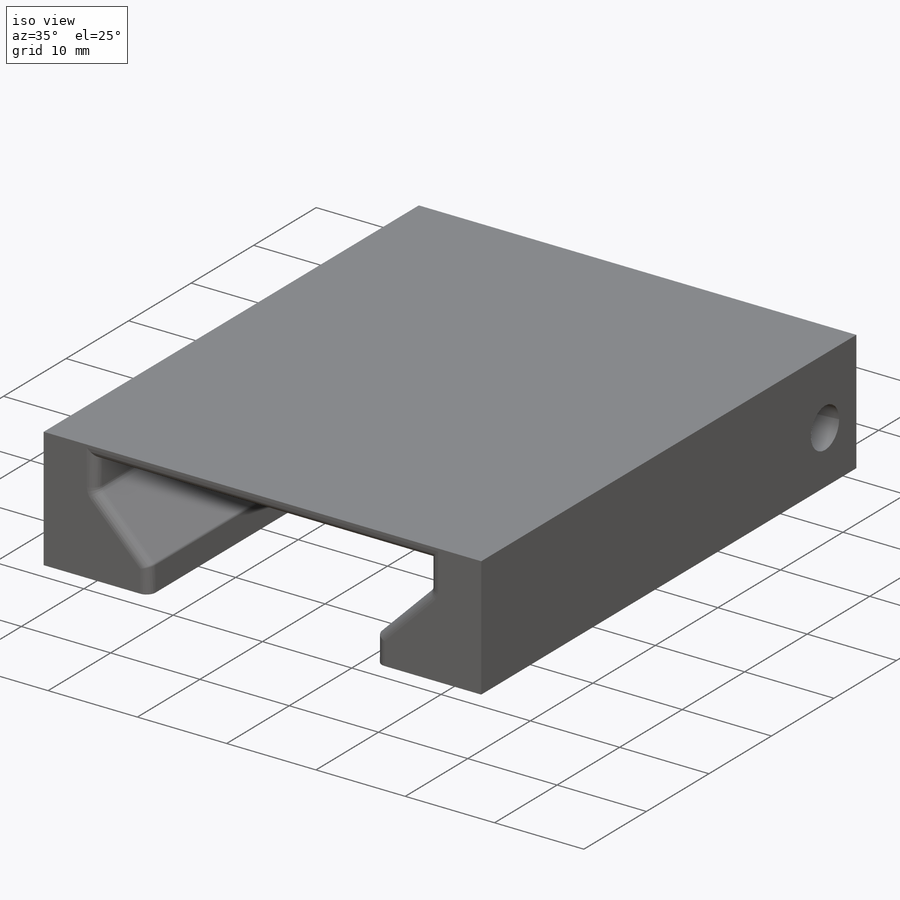
[diagram: iso view]
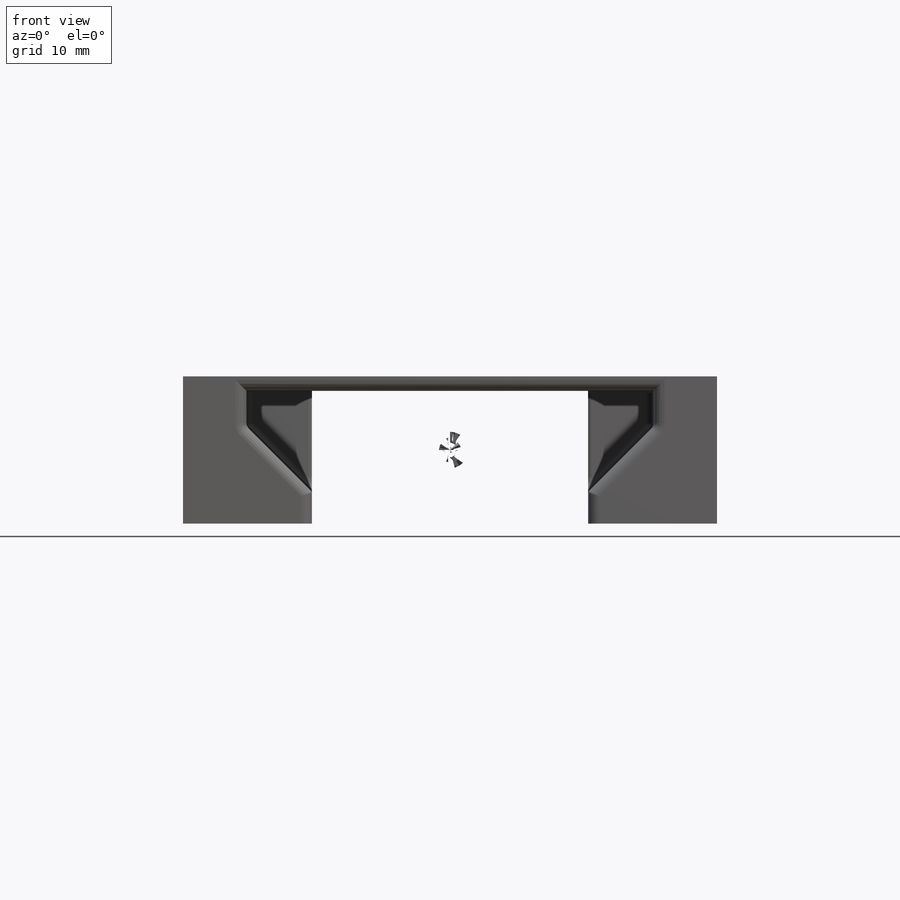
[diagram: front view]
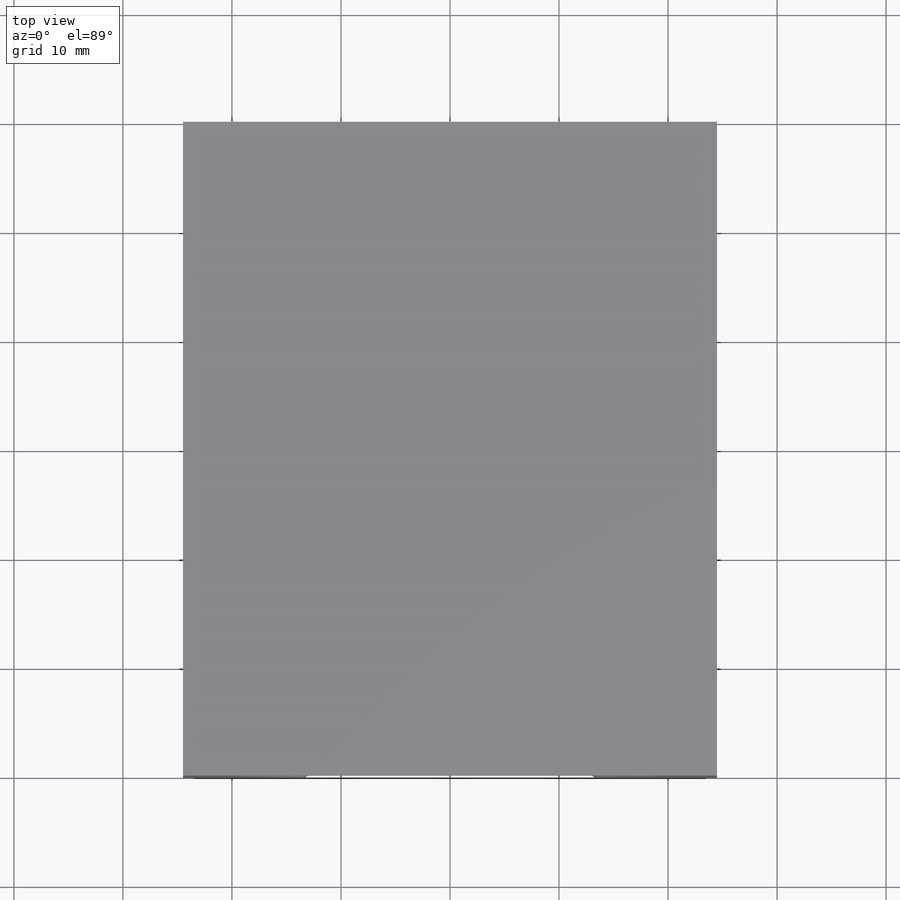
[diagram: top view]
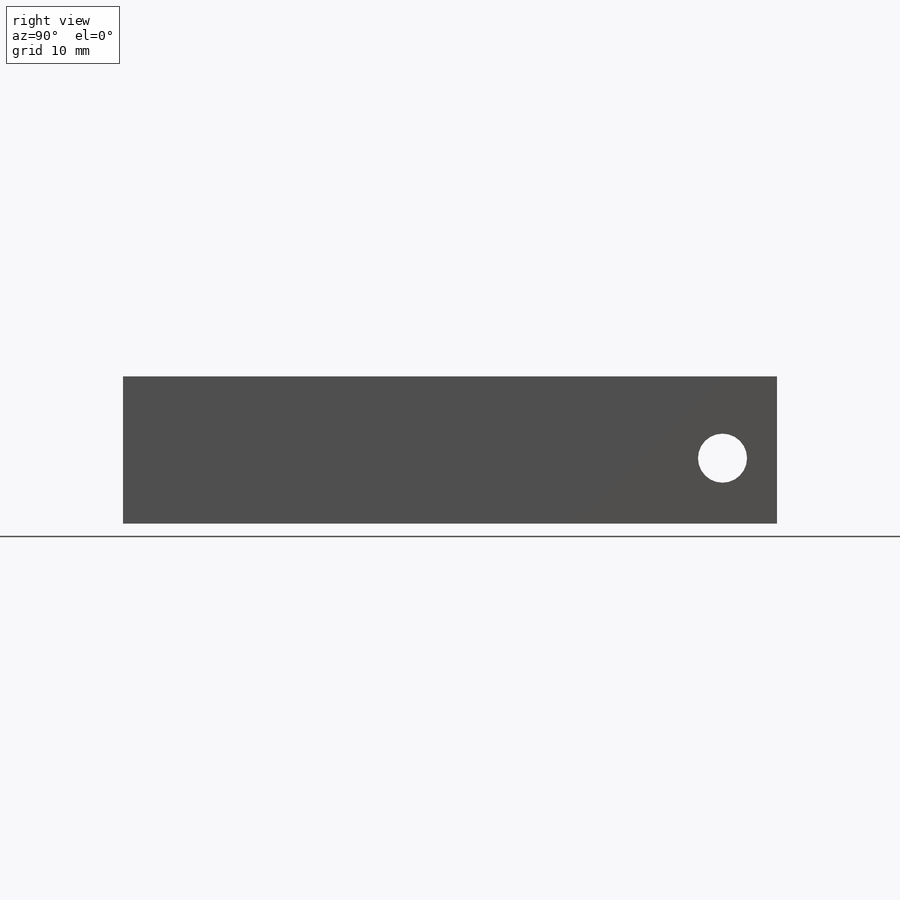
[diagram: right view]
SOLIDWORKS PART (.sldprt)
format: sldprt  version: not decoded by parser v0  size: 454,656 bytes
history: native  units: mm
features: sketch x11, cut_extrude x4, material x1, extrude x1, move_body x1, boolean_combine x1, hole x1, fillet x1 + 1 further entry (+18 scaffold rows collapsed; 5 parser-record rows omitted)
feature tree (45):
  scaffold x18  (default folders/planes/origin — collapsed)
  material  "ABS"
  sketch  "Sketch1"  dims[c1.D1=~9.515924mm c1.D2=~10.925691mm c2.D1=13.5mm c2.D2=49.0mm]
  extrude  "Main Body"  Depth=60mm
  sketch  "Sketch1-dovetail_male"  dims[c1.D1=10.0mm c1.D2=~6.409122mm c2.D2=45.0deg c2.D3=3.0mm c2.D4=~14.511515mm c2.D1=12.0mm c3.D2=3.0mm c3.D3=~5.973698mm c4.D3=45.0deg c4.D4=25.0mm]
  sketch  "Sketch9-dovetail_male"  dims[c1.D1=12.0mm c1.D2=6.0mm c2.D1=~16.178239mm]
  sketch  "Sketch10-dovetail_male"  dims[D1=~2.410913mm]
  sketch  "Sketch11-dovetail_male"  dims[c1.D1=~30.096908mm c1.D2=~14.271345mm c2.D1=6.0mm c2.D2=6.0mm c2.D3=6.0mm]
  "dovetail_male"
  parser-record x5  (decoder bookkeeping rows leaked as tree rows — omitted from the tree; the rows remain in map.json)
  move_body  "Body-Move/Copy2"
  boolean_combine  "Combine1"
  sketch  "Sketch6"  dims[D1=60.0mm D2=~25.279678mm]
  cut_extrude  "Combine Cleanup"  [1 undecoded]
  sketch  "Sketch7"  dims[D1=~17.347524mm]
  cut_extrude  "Insert"  [1 undecoded]
  hole  "M4 Clearance Hole1"  Diameter=4.5mm Depth=49mm
  sketch  "Sketch9"
  sketch  "Sketch8"  dims[hole-wizard template sketch: 60 standard entries collapsed; hole parameters kept: c18.Thru Hole Depth=49.0mm]
  sketch  "Sketch12"  dims[c1.D2=25.0mm c1.D3=25.35mm c1.D1=0.0mm c2.D2=0.175mm c2.D1=0.0mm c3.D2=0.175mm]
  cut_extrude  "Print Clearance 1"  [1 undecoded]
  sketch  "Sketch13"  dims[D2=25.7mm D1=0.175mm]
  cut_extrude  "Print Clearance 2"  [1 undecoded]
  fillet  "Inner Contouring"  Radius=1mm
decode coverage: 13 of 20 modeling features carry decoded parameters; 1 rows unclassified (native names shown)
note: ~ marks probable driven/reference dimensions
note: 4 parameter values undecoded
summary: no parameter record found for 4 features
note: suppression state not decoded; provenance and decode notes live in map.json
